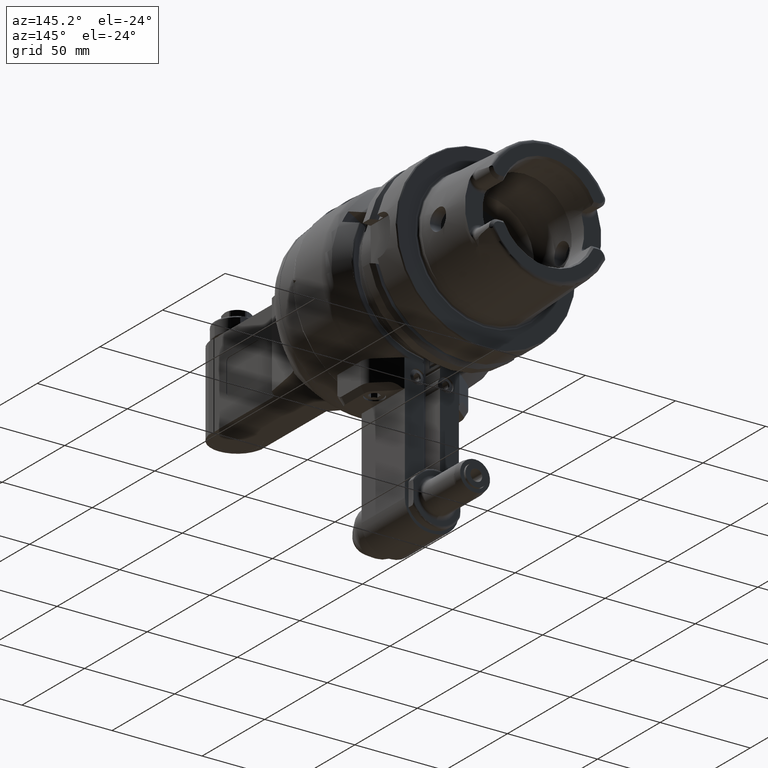
[diagram: clean part render]
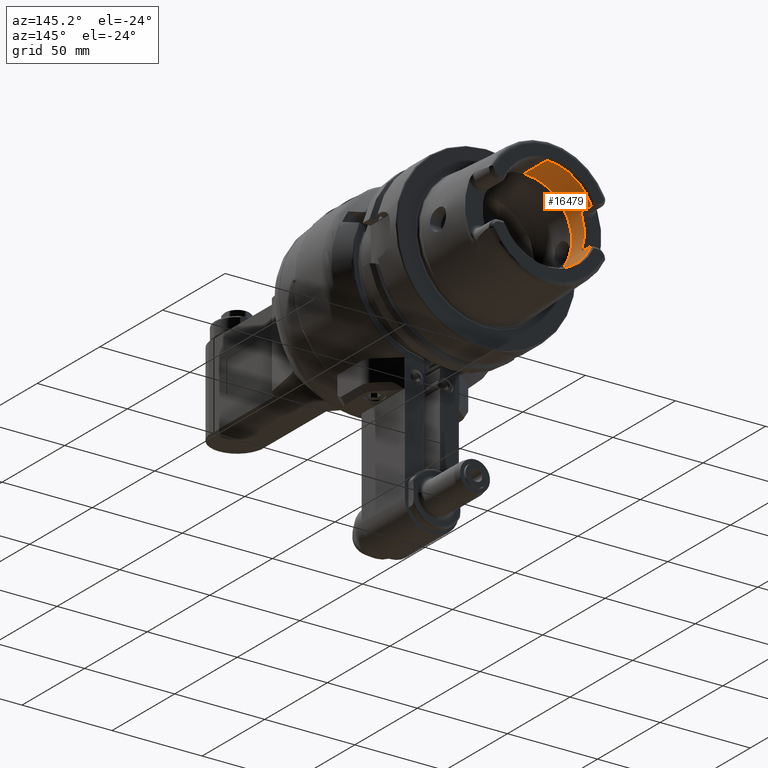
[diagram: same view with one face highlighted and labeled with its STEP entity id]
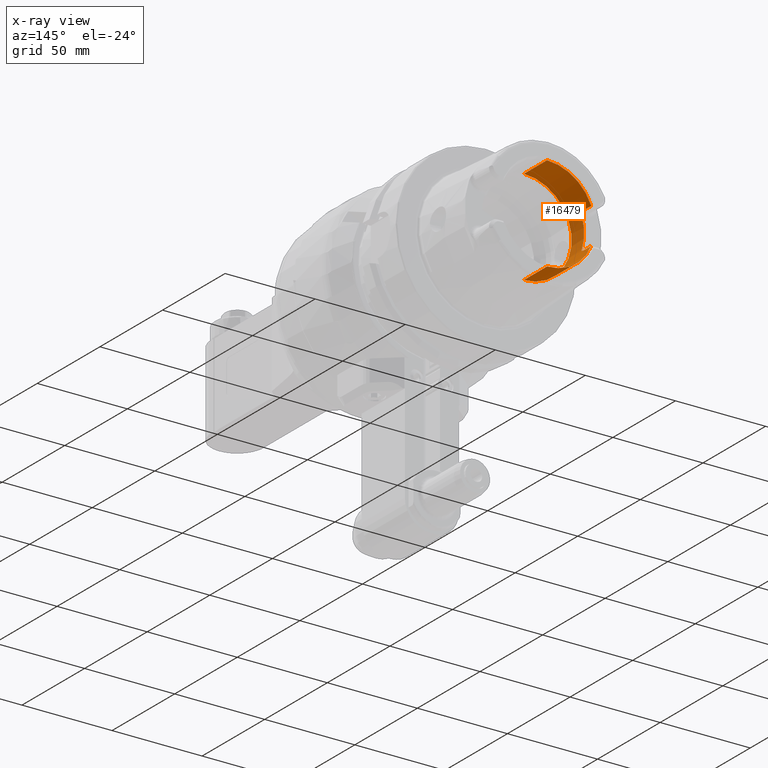
[diagram: x-ray of the same camera — body ghosted, the highlighted face saturated]
A machine part, auxiliary view. The second image highlights one B-rep face of the part: STEP entity #16479.
The next image is the same camera in x-ray: the body ghosted, the highlighted face saturated — about 0% of this face is hidden behind the body in this view.
In plain terms, the highlighted cylindrical surface (partial cylindrical patch) has radius 26.5 mm, axis along (0, 1, -0).
Its self-contained STEP definition (entity closure, byte-faithful):
#3388=CARTESIAN_POINT('',(0.E0,2.39E2,-3.098812081343E-11));
#3389=DIRECTION('',(0.E0,-1.E0,3.552713678797E-13));
#3390=DIRECTION('',(-9.532242039805E-1,1.072517336996E-13,3.022641509438E-1));
#3391=AXIS2_PLACEMENT_3D('',#3388,#3389,#3390);
#3755=CARTESIAN_POINT('',(-2.453670515778E1,2.41E2,1.000999999998E1));
#3756=CARTESIAN_POINT('',(-2.453670515778E1,2.409378467466E2,1.000999999998E1));
#3757=CARTESIAN_POINT('',(-2.453906800084E1,2.408131199441E2,1.000421115007E1));
#3758=CARTESIAN_POINT('',(-2.454984433572E1,2.406259854793E2,9.977755739250E0));
#3759=CARTESIAN_POINT('',(-2.456774134433E1,2.404418402231E2,9.933636921605E0));
#3760=CARTESIAN_POINT('',(-2.459247723482E1,2.402624154991E2,9.872282091090E0));
#3761=CARTESIAN_POINT('',(-2.462415386854E1,2.400872350792E2,9.793059924348E0));
#3762=CARTESIAN_POINT('',(-2.466230758646E1,2.399193799286E2,9.696636786372E0));
#3763=CARTESIAN_POINT('',(-2.470626899072E1,2.397611304085E2,9.584146568285E0));
#3764=CARTESIAN_POINT('',(-2.475612427836E1,2.396122121133E2,9.454709473512E0));
#3765=CARTESIAN_POINT('',(-2.481098690912E1,2.394756872667E2,9.309867799926E0));
#3766=CARTESIAN_POINT('',(-2.486964203037E1,2.393541207228E2,9.152110786890E0));
#3767=CARTESIAN_POINT('',(-2.493195696499E1,2.392476535562E2,8.981054784095E0));
#3768=CARTESIAN_POINT('',(-2.499683005270E1,2.391584770428E2,8.798946637850E0));
#3769=CARTESIAN_POINT('',(-2.506274475389E1,2.390883829046E2,8.609455161521E0));
#3770=CARTESIAN_POINT('',(-2.512940788501E1,2.390374901851E2,8.412943473961E0));
#3771=CARTESIAN_POINT('',(-2.519589122220E1,2.390067533212E2,8.211705807671E0));
#3772=CARTESIAN_POINT('',(-2.523914129934E1,2.39E2,8.077172295047E0));
#3773=CARTESIAN_POINT('',(-2.526044140549E1,2.39E2,8.009999999986E0));
#3789=DIRECTION('',(6.804813123243E-13,-1.E0,-6.479603178799E-13));
#3790=VECTOR('',#3789,6.499999999998E0);
#3791=CARTESIAN_POINT('',(-2.453670515780E1,2.475E2,-1.001000000001E1));
#3792=LINE('',#3791,#3790);
#3793=DIRECTION('',(0.E0,-1.E0,3.559124265285E-13));
#3794=VECTOR('',#3793,1.849662432703E1);
#3795=CARTESIAN_POINT('',(0.E0,2.475E2,2.649999999997E1));
#3796=LINE('',#3795,#3794);
#3797=DIRECTION('',(-2.940553783374E-13,1.E0,-6.441343185328E-13));
#3798=VECTOR('',#3797,6.500000000005E0);
#3799=CARTESIAN_POINT('',(-2.453670515778E1,2.41E2,1.000999999998E1));
#3800=LINE('',#3799,#3798);
#3906=CARTESIAN_POINT('',(0.E0,2.475E2,-3.400792744041E-11));
#3907=DIRECTION('',(0.E0,-1.E0,3.552713678797E-13));
#3908=DIRECTION('',(-9.259134021808E-1,-1.340646671245E-13,-3.777358490558E-1));
#3909=AXIS2_PLACEMENT_3D('',#3906,#3907,#3908);
#3916=DIRECTION('',(0.E0,-1.E0,3.547599847804E-13));
#3917=VECTOR('',#3916,1.849662432703E1);
#3918=CARTESIAN_POINT('',(0.E0,2.475E2,-2.650000000003E1));
#3919=LINE('',#3918,#3917);
#3932=CARTESIAN_POINT('',(0.E0,2.290033756730E2,-2.743660641459E-11));
#3933=DIRECTION('',(0.E0,1.E0,-3.552713678797E-13));
#3934=DIRECTION('',(0.E0,-3.550032385458E-13,-1.E0));
#3935=AXIS2_PLACEMENT_3D('',#3932,#3933,#3934);
#4964=CARTESIAN_POINT('',(0.E0,2.475E2,-3.400792744041E-11));
#4965=DIRECTION('',(0.E0,-1.E0,3.552713678797E-13));
#4966=DIRECTION('',(0.E0,3.550032385458E-13,1.E0));
#4967=AXIS2_PLACEMENT_3D('',#4964,#4965,#4966);
#5011=CARTESIAN_POINT('',(-2.526044140550E1,2.39E2,-8.010000000006E0));
#5012=CARTESIAN_POINT('',(-2.523914098984E1,2.39E2,-8.077173271127E0));
#5013=CARTESIAN_POINT('',(-2.519589095418E1,2.390067533580E2,
-8.211706640829E0));
#5014=CARTESIAN_POINT('',(-2.512940839984E1,2.390374903323E2,
-8.412941817125E0));
#5015=CARTESIAN_POINT('',(-2.506275086272E1,2.390883774348E2,
-8.609437356157E0));
#5016=CARTESIAN_POINT('',(-2.499683175972E1,2.391584744439E2,
-8.798941904475E0));
#5017=CARTESIAN_POINT('',(-2.493195765844E1,2.392476528270E2,
-8.981052795194E0));
#5018=CARTESIAN_POINT('',(-2.486964679695E1,2.393541120136E2,
-9.152097799101E0));
#5019=CARTESIAN_POINT('',(-2.481099025404E1,2.394756792723E2,
-9.309858939612E0));
#5020=CARTESIAN_POINT('',(-2.475612529757E1,2.396122092345E2,
-9.454706813482E0));
#5021=CARTESIAN_POINT('',(-2.470627084750E1,2.397611246269E2,
-9.584141766782E0));
#5022=CARTESIAN_POINT('',(-2.466230967636E1,2.399193714304E2,
-9.696631483019E0));
#5023=CARTESIAN_POINT('',(-2.462415422733E1,2.400872328647E2,
-9.793059034326E0));
#5024=CARTESIAN_POINT('',(-2.459247710178E1,2.402624161932E2,
-9.872282422935E0));
#5025=CARTESIAN_POINT('',(-2.456774105548E1,2.404418425680E2,
-9.933637636482E0));
#5026=CARTESIAN_POINT('',(-2.454984412956E1,2.406259881490E2,
-9.977756245960E0));
#5027=CARTESIAN_POINT('',(-2.453906792293E1,2.408131223466E2,
-1.000421134106E1));
#5028=CARTESIAN_POINT('',(-2.453670515779E1,2.409378477077E2,
-1.001000000001E1));
#5029=CARTESIAN_POINT('',(-2.453670515779E1,2.41E2,-1.001000000001E1));
#12000=CARTESIAN_POINT('',(-2.453670515778E1,2.475E2,1.000999999997E1));
#12002=VERTEX_POINT('',#12000);
#12115=CARTESIAN_POINT('',(-2.453670515779E1,2.475E2,-1.001000000001E1));
#12116=CARTESIAN_POINT('',(0.E0,2.475E2,-2.650000000003E1));
#12117=VERTEX_POINT('',#12115);
#12118=VERTEX_POINT('',#12116);
#12119=CARTESIAN_POINT('',(0.E0,2.290033756730E2,-2.650000000003E1));
#12120=VERTEX_POINT('',#12119);
#12121=CARTESIAN_POINT('',(-1.240794299330E-14,2.290033756730E2,
2.649999999997E1));
#12122=VERTEX_POINT('',#12121);
#12123=CARTESIAN_POINT('',(0.E0,2.475E2,2.649999999997E1));
#12124=VERTEX_POINT('',#12123);
#12125=CARTESIAN_POINT('',(-2.453670515778E1,2.41E2,1.000999999998E1));
#12126=VERTEX_POINT('',#12125);
#12127=VERTEX_POINT('',#3773);
#12128=CARTESIAN_POINT('',(-2.526044140549E1,2.39E2,-8.010000000009E0));
#12129=VERTEX_POINT('',#12128);
#12130=VERTEX_POINT('',#5029);
#16455=CARTESIAN_POINT('',(0.E0,2.1775E2,-2.343860424599E-11));
#16456=DIRECTION('',(0.E0,1.E0,-3.552713678797E-13));
#16457=DIRECTION('',(0.E0,3.552713678797E-13,1.E0));
#16458=AXIS2_PLACEMENT_3D('',#16455,#16456,#16457);
#16459=CYLINDRICAL_SURFACE('',#16458,2.65E1);
#16461=ORIENTED_EDGE('',*,*,#16460,.F.);
#16463=ORIENTED_EDGE('',*,*,#16462,.T.);
#16465=ORIENTED_EDGE('',*,*,#16464,.T.);
#16467=ORIENTED_EDGE('',*,*,#16466,.T.);
#16469=ORIENTED_EDGE('',*,*,#16468,.F.);
#16471=ORIENTED_EDGE('',*,*,#16470,.T.);
#16472=ORIENTED_EDGE('',*,*,#16423,.F.);
#16473=ORIENTED_EDGE('',*,*,#16437,.T.);
#16474=ORIENTED_EDGE('',*,*,#16178,.T.);
#16476=ORIENTED_EDGE('',*,*,#16475,.T.);
#16477=EDGE_LOOP('',(#16461,#16463,#16465,#16467,#16469,#16471,#16472,#16473,
#16474,#16476));
#16478=FACE_OUTER_BOUND('',#16477,.F.);
#16479=ADVANCED_FACE('',(#16478),#16459,.F.);
#3392=CIRCLE('',#3391,2.65E1);
#3774=B_SPLINE_CURVE_WITH_KNOTS('',3,(#3755,#3756,#3757,#3758,#3759,#3760,#3761,
#3762,#3763,#3764,#3765,#3766,#3767,#3768,#3769,#3770,#3771,#3772,#3773),
.UNSPECIFIED.,.F.,.F.,(4,1,1,1,1,1,1,1,1,1,1,1,1,1,1,1,4),(0.E0,6.25E-2,1.25E-1,
1.875E-1,2.5E-1,3.125E-1,3.75E-1,4.375E-1,5.E-1,5.625E-1,6.25E-1,6.875E-1,
7.5E-1,8.125E-1,8.75E-1,9.375E-1,1.E0),.UNSPECIFIED.);
#3910=CIRCLE('',#3909,2.65E1);
#3936=CIRCLE('',#3935,2.65E1);
#4968=CIRCLE('',#4967,2.65E1);
#5030=B_SPLINE_CURVE_WITH_KNOTS('',3,(#5011,#5012,#5013,#5014,#5015,#5016,#5017,
#5018,#5019,#5020,#5021,#5022,#5023,#5024,#5025,#5026,#5027,#5028,#5029),
.UNSPECIFIED.,.F.,.F.,(4,1,1,1,1,1,1,1,1,1,1,1,1,1,1,1,4),(0.E0,6.25E-2,1.25E-1,
1.875E-1,2.5E-1,3.125E-1,3.75E-1,4.375E-1,5.E-1,5.625E-1,6.25E-1,6.875E-1,
7.5E-1,8.125E-1,8.75E-1,9.375E-1,1.E0),.UNSPECIFIED.);
#16178=EDGE_CURVE('',#12127,#12129,#3392,.T.);
#16423=EDGE_CURVE('',#12126,#12002,#3800,.T.);
#16437=EDGE_CURVE('',#12126,#12127,#3774,.T.);
#16460=EDGE_CURVE('',#12117,#12130,#3792,.T.);
#16462=EDGE_CURVE('',#12117,#12118,#3910,.T.);
#16464=EDGE_CURVE('',#12118,#12120,#3919,.T.);
#16466=EDGE_CURVE('',#12120,#12122,#3936,.T.);
#16468=EDGE_CURVE('',#12124,#12122,#3796,.T.);
#16470=EDGE_CURVE('',#12124,#12002,#4968,.T.);
#16475=EDGE_CURVE('',#12129,#12130,#5030,.T.);